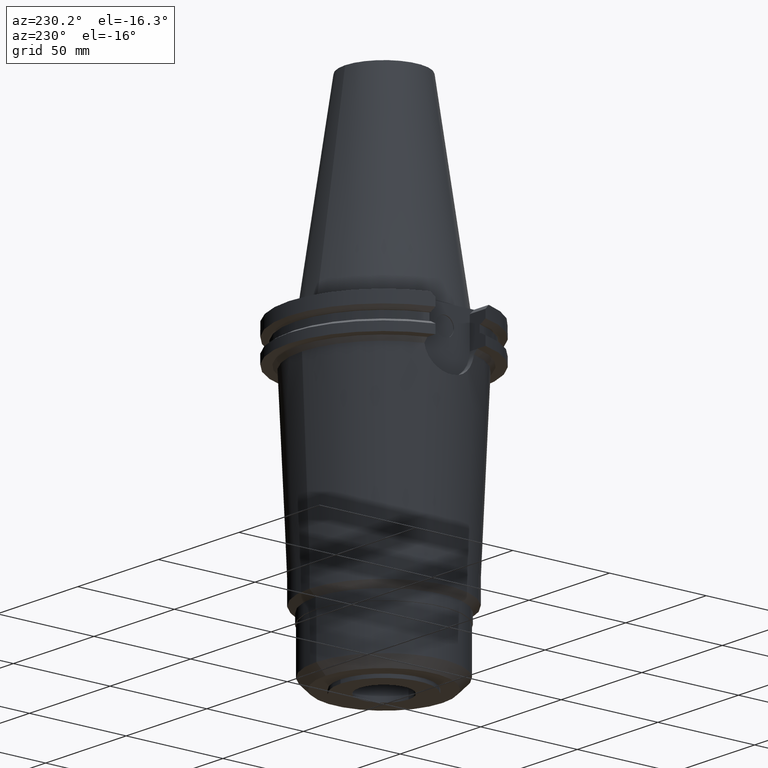
[diagram: clean part render]
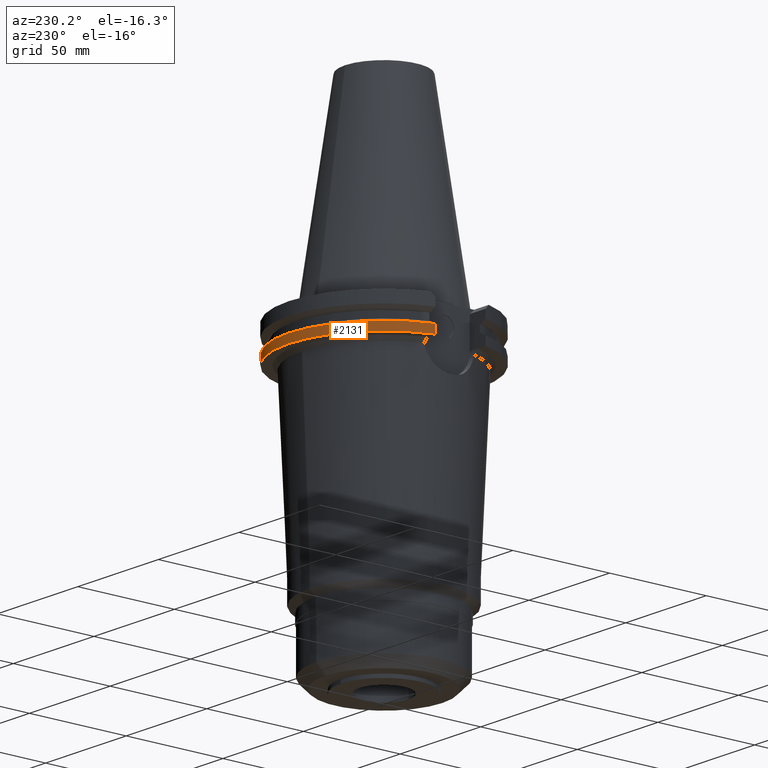
[diagram: same view with one face highlighted and labeled with its STEP entity id]
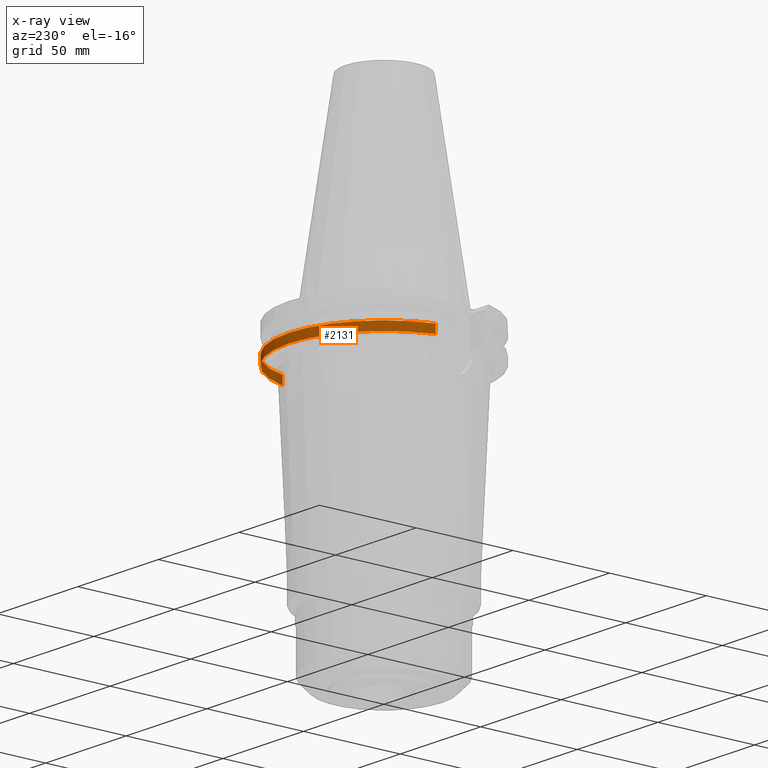
[diagram: x-ray of the same camera — body ghosted, the highlighted face saturated]
A machine part, auxiliary view. The second image highlights one B-rep face of the part: STEP entity #2131.
The next image is the same camera in x-ray: the body ghosted, the highlighted face saturated — about 2% of this face is hidden behind the body in this view.
In plain terms, the highlighted cylindrical surface (partial cylindrical patch) has radius 49.2125 mm, axis along (0, 0, -1).
Its self-contained STEP definition (entity closure, byte-faithful):
#466=CARTESIAN_POINT('',(0.E0,2.625887666732E-14,-1.905E1));
#467=DIRECTION('',(0.E0,0.E0,1.E0));
#468=DIRECTION('',(9.647287063661E-1,2.632461264923E-1,0.E0));
#469=AXIS2_PLACEMENT_3D('',#466,#467,#468);
#474=CARTESIAN_POINT('',(0.E0,2.625887666732E-14,-1.905E1));
#475=DIRECTION('',(0.E0,0.E0,1.E0));
#476=DIRECTION('',(0.E0,1.E0,0.E0));
#477=AXIS2_PLACEMENT_3D('',#474,#475,#476);
#498=DIRECTION('',(1.341459893288E-13,4.848650216703E-14,1.E0));
#499=VECTOR('',#498,4.396333230921E0);
#500=CARTESIAN_POINT('',(4.747671146204E1,1.2955E1,-1.905E1));
#501=LINE('',#500,#499);
#505=DIRECTION('',(1.212162554176E-13,-4.808244798230E-14,-1.E0));
#506=VECTOR('',#505,4.396333230921E0);
#507=CARTESIAN_POINT('',(-4.747671146204E1,1.2955E1,-1.465366676908E1));
#508=LINE('',#507,#506);
#512=CARTESIAN_POINT('',(4.747671146204E1,1.2955E1,-1.465366676908E1));
#527=CARTESIAN_POINT('',(-4.747671146204E1,1.2955E1,-1.465366676908E1));
#532=CARTESIAN_POINT('',(0.E0,1.055026073065E-14,-1.465366676908E1));
#533=DIRECTION('',(0.E0,0.E0,-1.E0));
#534=DIRECTION('',(-9.647287063661E-1,2.632461264923E-1,0.E0));
#535=AXIS2_PLACEMENT_3D('',#532,#533,#534);
#540=CARTESIAN_POINT('',(0.E0,1.055026073065E-14,-1.465366676908E1));
#541=DIRECTION('',(0.E0,0.E0,-1.E0));
#542=DIRECTION('',(0.E0,1.E0,0.E0));
#543=AXIS2_PLACEMENT_3D('',#540,#541,#542);
#1672=CARTESIAN_POINT('',(4.747671146204E1,1.2955E1,-1.905E1));
#1673=VERTEX_POINT('',#1672);
#1674=CARTESIAN_POINT('',(0.E0,4.92125E1,-1.905E1));
#1675=CARTESIAN_POINT('',(-4.747671146204E1,1.2955E1,-1.905E1));
#1676=VERTEX_POINT('',#1674);
#1677=VERTEX_POINT('',#1675);
#1774=VERTEX_POINT('',#512);
#1775=VERTEX_POINT('',#527);
#1776=CARTESIAN_POINT('',(0.E0,4.92125E1,-1.465366676908E1));
#1777=VERTEX_POINT('',#1776);
#2116=CARTESIAN_POINT('',(0.E0,2.625887666732E-14,1.1442E2));
#2117=DIRECTION('',(0.E0,0.E0,-1.E0));
#2118=DIRECTION('',(0.E0,-1.E0,0.E0));
#2119=AXIS2_PLACEMENT_3D('',#2116,#2117,#2118);
#2120=CYLINDRICAL_SURFACE('',#2119,4.92125E1);
#2121=ORIENTED_EDGE('',*,*,#1967,.T.);
#2123=ORIENTED_EDGE('',*,*,#2122,.F.);
#2125=ORIENTED_EDGE('',*,*,#2124,.F.);
#2126=ORIENTED_EDGE('',*,*,#2078,.T.);
#2127=ORIENTED_EDGE('',*,*,#2108,.F.);
#2128=ORIENTED_EDGE('',*,*,#2106,.F.);
#2129=EDGE_LOOP('',(#2121,#2123,#2125,#2126,#2127,#2128));
#2130=FACE_OUTER_BOUND('',#2129,.F.);
#470=CIRCLE('',#469,4.92125E1);
#478=CIRCLE('',#477,4.92125E1);
#536=CIRCLE('',#535,4.92125E1);
#544=CIRCLE('',#543,4.92125E1);
#1967=EDGE_CURVE('',#1673,#1774,#501,.T.);
#2078=EDGE_CURVE('',#1775,#1677,#508,.T.);
#2106=EDGE_CURVE('',#1673,#1676,#470,.T.);
#2108=EDGE_CURVE('',#1676,#1677,#478,.T.);
#2122=EDGE_CURVE('',#1777,#1774,#544,.T.);
#2124=EDGE_CURVE('',#1775,#1777,#536,.T.);
#2131=ADVANCED_FACE('',(#2130),#2120,.T.);